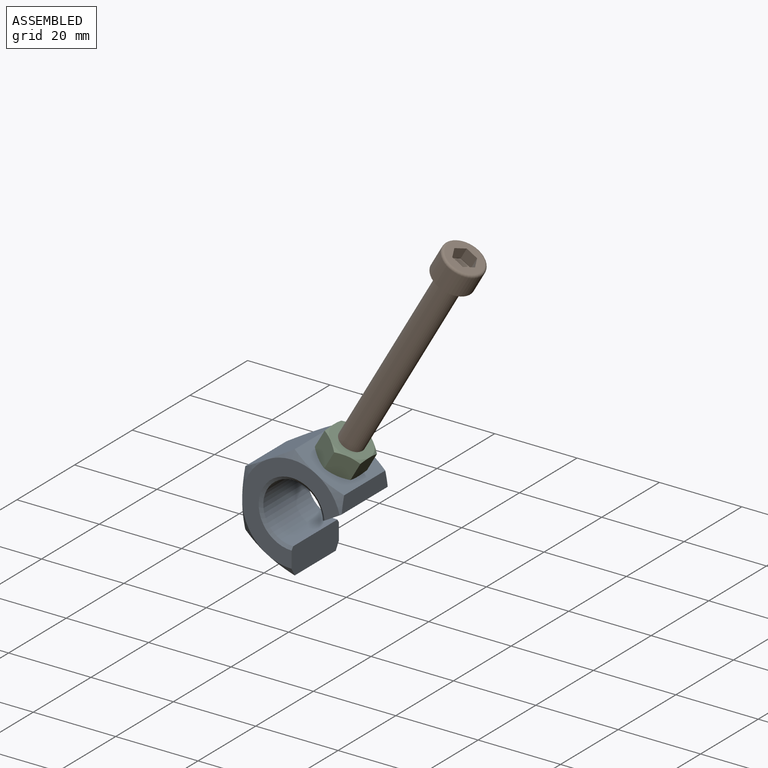
[diagram: assembled view]
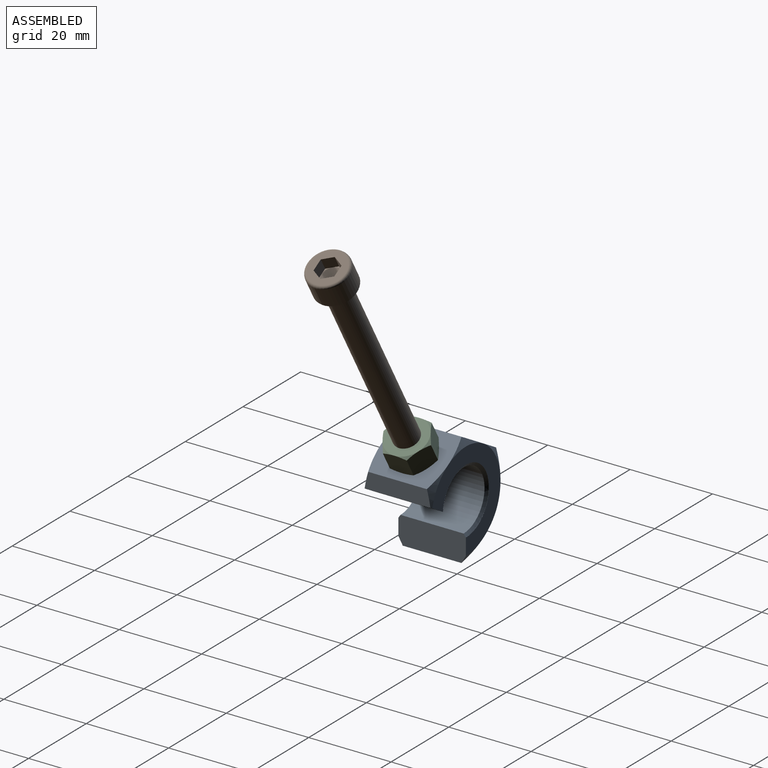
[diagram: assembled view, second angle]
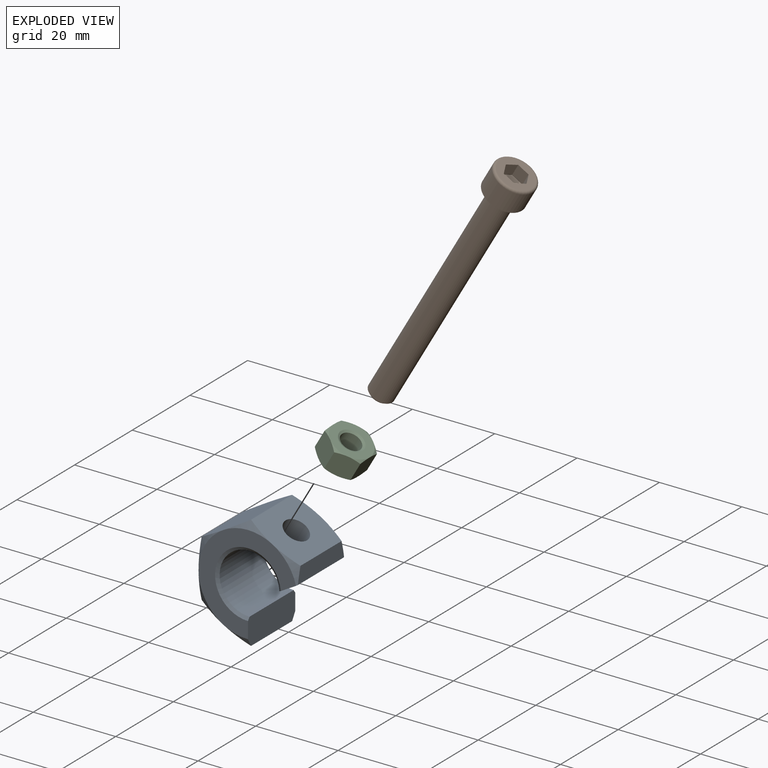
[diagram: exploded view]
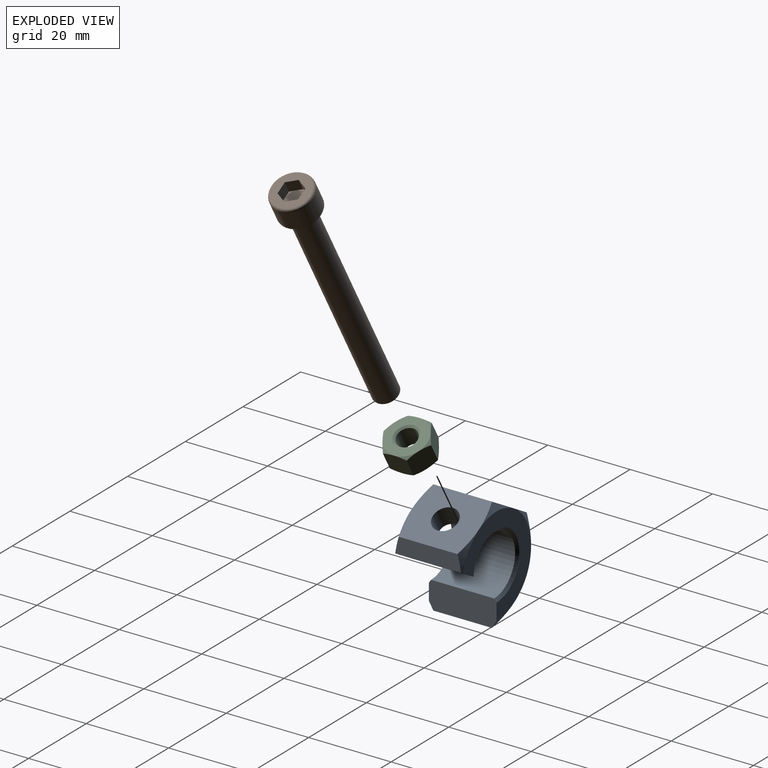
[diagram: exploded view, second angle]
ASSEMBLY  parts=3 mates=2
PART A: 24 faces, bbox 27.7x16.8x28.1 mm
  f0: plane 24x23.66mm, normal (0,-1,0), area 181.3mm2, adj f13,f14,f15,f16,f17,f18,f22,f23
  f1: plane 16.33x4.25mm, normal (1,0,0), area 59mm2, adj f5,f10,f15,f22
  f2: cylinder r=7.25mm len=15.32mm, axis (0,-1,0), area 490mm2, adj f18,f19,f21,f22,f23
  f3: plane 24x23.66mm, normal (0,1,0), area 181.3mm2, adj f8,f9,f10,f11,f12,f20,f22,f23
  f4: plane 16.41x12mm, normal (-0.5,0,0.87), area 217.1mm2, adj f5,f7,f8,f9,f16,f17
  f5: plane 16.41x12mm, normal (0.5,0,0.87), area 188.8mm2, adj f1,f4,f9,f10,f15,f16,f21
  f6: plane 16.41x12mm, normal (-0.5,0,-0.87), area 217.1mm2, adj f7,f11,f12,f13,f14,f23
  f7: plane 16.41x13.87mm, normal (-1,0,0), area 217.1mm2, adj f4,f6,f8,f12,f13,f17
  f8: cone r=12mm half-angle=60deg, axis (0,-1,0), area 8.9mm2, adj f3,f4,f7
  f9: cone r=12mm half-angle=60deg, axis (0,-1,0), area 8.9mm2, adj f3,f4,f5
  f10: cone r=12mm half-angle=60deg, axis (0,-1,0), area 9mm2, adj f1,f3,f5,f22
  f11: cone r=12mm half-angle=60deg, axis (0,-1,0), area 4.5mm2, adj f3,f6,f23
  f12: cone r=12mm half-angle=60deg, axis (0,-1,0), area 8.9mm2, adj f3,f6,f7
  f13: cone r=12mm half-angle=60deg, axis (0,1,0), area 8.9mm2, adj f0,f6,f7
  f14: cone r=12mm half-angle=60deg, axis (0,1,0), area 4.5mm2, adj f0,f6,f23
  f15: cone r=12mm half-angle=60deg, axis (0,1,0), area 9mm2, adj f0,f1,f5,f22
  f16: cone r=12mm half-angle=60deg, axis (0,1,0), area 8.9mm2, adj f0,f4,f5
  f17: cone r=12mm half-angle=60deg, axis (0,1,0), area 8.9mm2, adj f0,f4,f7
  f18: cone r=7.17mm half-angle=55deg, axis (0,-1,0), area 32.4mm2, adj f0,f2,f22,f23
  f19: cone r=8mm half-angle=55deg, axis (0,1,0), area 32.4mm2, adj f2,f20,f22,f23
  f20: cylinder r=8mm len=16mm, axis (0,-1,0), area 0.9mm2, adj f3,f19,f22,f23
  f21: cylinder r=3mm len=7.9mm, axis (0.5,0,0.87), area 95.6mm2, adj f2,f5
  f22: plane 16.42x4.78mm, normal (0.5,0,-0.87), area 89.5mm2, adj f0,f1,f2,f3,f10,f15,f18,f19
  f23: plane 16.4x6.61mm, normal (1,0,0), area 105.9mm2, adj f0,f2,f3,f6,f11,f14,f18,f19
PART B: 21 faces, bbox 66x10.8x10.8 mm
  f0: plane 8.8x8.8mm, normal (-1,0,0), area 39mm2, adj f7,f8,f9,f10,f11,f12,f13
  f1: cylinder r=5mm len=10mm, axis (-1,0,0), area 169.6mm2, adj f2,f7
  f2: plane 10x10mm, normal (1,0,0), area 45.4mm2, adj f1,f6
  f3: cylinder r=3mm len=59.2mm, axis (-1,0,0), area 1115.8mm2, adj f4,f6
  f4: cone r=2.45mm half-angle=45deg, axis (-1,0,0), area 13.4mm2, adj f3,f5
  f5: plane 4.89x4.89mm, normal (1,0,0), area 18.8mm2, adj f4
  f6: torus R=3.25mm, axis (1,0,0), area 7.6mm2, adj f2,f3
  f7: torus R=4.4mm, axis (-1,0,0), area 28.3mm2, adj f0,f1
  f8: plane 3x2.51mm, normal (0,0.5,-0.87), area 8.7mm2, adj f0,f9,f13,f17,f18
  f9: plane 3x2.9mm, normal (0,1,0), area 8.7mm2, adj f0,f8,f10,f16,f17
  f10: plane 3x2.51mm, normal (0,0.5,0.87), area 8.7mm2, adj f0,f9,f11,f15,f16
  f11: plane 3x2.51mm, normal (0,-0.5,0.87), area 8.7mm2, adj f0,f10,f12,f14,f15
  f12: plane 3x2.9mm, normal (0,-1,0), area 8.7mm2, adj f0,f11,f13,f14,f19
  f13: plane 3x2.51mm, normal (0,-0.5,-0.87), area 8.7mm2, adj f0,f8,f12,f18,f19
  f14: plane 2.17x1.26mm, normal (-1,0,0), area 0.3mm2, adj f11,f12,f20
  f15: plane 2.51x0.72mm, normal (-1,0,0), area 0.3mm2, adj f10,f11,f20
  f16: plane 2.17x1.26mm, normal (-1,0,0), area 0.3mm2, adj f9,f10,f20
  f17: plane 2.17x1.26mm, normal (-1,0,0), area 0.3mm2, adj f8,f9,f20
  f18: plane 2.51x0.72mm, normal (-1,0,0), area 0.3mm2, adj f8,f13,f20
  f19: plane 2.17x1.26mm, normal (-1,0,0), area 0.3mm2, adj f12,f13,f20
  f20: cone r=2.51mm half-angle=60deg, axis (-1,0,0), area 22.9mm2, adj f14,f15,f16,f17,f18,f19
PART C: 26 faces, bbox 5.7x11.5x11.5 mm
  f0: cone r=5.39mm half-angle=60deg, axis (-1,0,0), area 1.6mm2, adj f6,f11,f12
  f1: cone r=5.39mm half-angle=60deg, axis (-1,0,0), area 1.6mm2, adj f6,f7,f12
  f2: cone r=5.39mm half-angle=60deg, axis (-1,0,0), area 1.6mm2, adj f7,f8,f12
  f3: cone r=5.39mm half-angle=60deg, axis (-1,0,0), area 1.6mm2, adj f8,f9,f12
  f4: cone r=5.39mm half-angle=60deg, axis (-1,0,0), area 1.6mm2, adj f9,f10,f12
  f5: cone r=5.39mm half-angle=60deg, axis (-1,0,0), area 1.6mm2, adj f10,f11,f12
  f6: plane 5.77x5.7mm, normal (0,0,-1), area 31.1mm2, adj f0,f1,f7,f11,f14,f15
  f7: plane 5.7x5mm, normal (0,0.87,-0.5), area 31.1mm2, adj f1,f2,f6,f8,f15,f16
  f8: plane 5.7x5mm, normal (0,0.87,0.5), area 31.1mm2, adj f2,f3,f7,f9,f16,f17
  f9: plane 5.77x5.7mm, normal (0,0,1), area 31.1mm2, adj f3,f4,f8,f10,f17,f18
  f10: plane 5.7x5mm, normal (0,-0.87,0.5), area 31.1mm2, adj f4,f5,f9,f11,f18,f19
  f11: plane 5.7x5mm, normal (0,-0.87,-0.5), area 31.1mm2, adj f0,f5,f6,f10,f14,f19
  f12: plane 10.08x10mm, normal (1,0,0), area 50.3mm2, adj f0,f1,f2,f3,f4,f5,f13,f20
  f13: cone r=2.73mm half-angle=60deg, axis (1,0,0), area 5.4mm2, adj f12,f20,f21
  f14: cone r=5.39mm half-angle=60deg, axis (1,0,0), area 1.6mm2, adj f6,f11,f22
  f15: cone r=5.39mm half-angle=60deg, axis (1,0,0), area 1.6mm2, adj f6,f7,f22
  f16: cone r=5.39mm half-angle=60deg, axis (1,0,0), area 1.6mm2, adj f7,f8,f22
  f17: cone r=5.39mm half-angle=60deg, axis (1,0,0), area 1.6mm2, adj f8,f9,f22
  f18: cone r=5.39mm half-angle=60deg, axis (1,0,0), area 1.6mm2, adj f9,f10,f22
  f19: cone r=5.39mm half-angle=60deg, axis (1,0,0), area 1.6mm2, adj f10,f11,f22
  f20: cone r=2.73mm half-angle=60deg, axis (1,0,0), area 5.4mm2, adj f12,f13,f24
  f21: cylinder r=2.46mm len=5.08mm, axis (-1,0,0), area 39.2mm2, adj f13,f23,f24
  f22: plane 10.08x10mm, normal (-1,0,0), area 50.3mm2, adj f14,f15,f16,f17,f18,f19,f23,f25
  f23: cone r=2.73mm half-angle=60deg, axis (-1,0,0), area 5.4mm2, adj f21,f22,f25
  f24: cylinder r=2.46mm len=5.08mm, axis (-1,0,0), area 39.2mm2, adj f20,f21,f25
  f25: cone r=2.73mm half-angle=60deg, axis (-1,0,0), area 5.4mm2, adj f22,f23,f24
PLACE A t=(-10.01,-13.24,1.11)mm
PLACE B rot(axis=(0,1,0),120deg) t=(26.27,-5.03,63.95)mm
PLACE C rot(axis=(0,1,0),120deg) t=(-1.16,-5.03,16.44)mm
MATE fastened B.f1 <-> A.f21  axis (-0.5,0,-0.87) through (-6.73,-5.03,6.8)mm
MATE fastened C.f0 <-> A.f21  axis (-0.5,0,-0.87) through (-4.01,-5.03,11.51)mm
